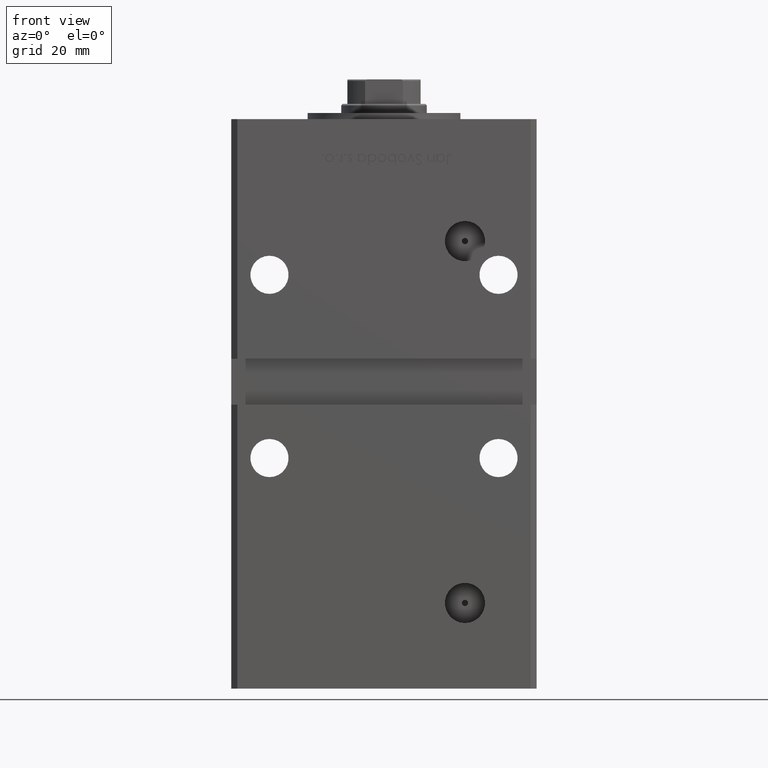
[diagram: clean part render]
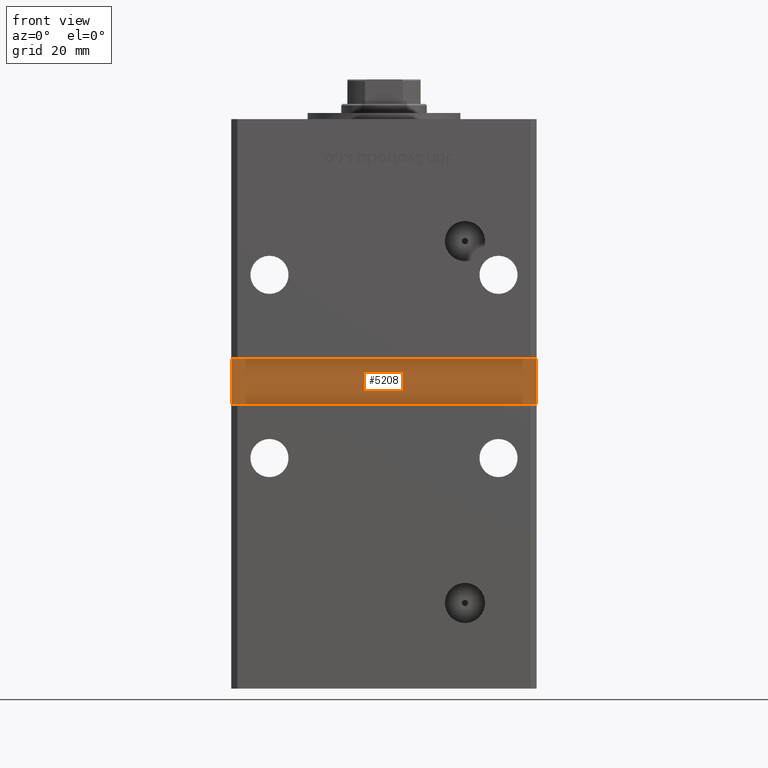
[diagram: same view with one face highlighted and labeled with its STEP entity id]
A machine part, front view. The second image highlights one B-rep face of the part: STEP entity #5208.
In plain terms, the highlighted planar face has unit normal (0, -1, 0).
Its self-contained STEP definition (entity closure, byte-faithful):
#64 = EDGE_LOOP ( 'NONE', ( #34169, #205, #2521, #29787 ) ) ;
#205 = ORIENTED_EDGE ( 'NONE', *, *, #41318, .T. ) ;
#914 = EDGE_CURVE ( 'NONE', #50993, #34106, #21449, .T. ) ;
#2521 = ORIENTED_EDGE ( 'NONE', *, *, #19489, .T. ) ;
#4487 = DIRECTION ( 'NONE',  ( 0.000000000000000000, -1.000000000000000000, 0.000000000000000000 ) ) ;
#5208 = ADVANCED_FACE ( 'NONE', ( #45626 ), #9049, .T. ) ;
#8787 = CARTESIAN_POINT ( 'NONE',  ( 0.000000000000000000, -38.50000000000000000, 0.000000000000000000 ) ) ;
#9049 = PLANE ( 'NONE',  #27549 ) ;
#11839 = VECTOR ( 'NONE', #12269, 1000.000000000000000 ) ;
#12262 = VERTEX_POINT ( 'NONE', #40412 ) ;
#12269 = DIRECTION ( 'NONE',  ( -1.000000000000000000, -0.000000000000000000, -0.000000000000000000 ) ) ;
#13649 = LINE ( 'NONE', #30587, #33989 ) ;
#14705 = DIRECTION ( 'NONE',  ( -0.000000000000000000, -0.000000000000000000, 1.000000000000000000 ) ) ;
#18218 = DIRECTION ( 'NONE',  ( 0.000000000000000000, 0.000000000000000000, -1.000000000000000000 ) ) ;
#19489 = EDGE_CURVE ( 'NONE', #31404, #50993, #13649, .T. ) ;
#21186 = DIRECTION ( 'NONE',  ( 1.000000000000000000, 0.000000000000000000, 0.000000000000000000 ) ) ;
#21411 = DIRECTION ( 'NONE',  ( 0.000000000000000000, -0.000000000000000000, -1.000000000000000000 ) ) ;
#21449 = LINE ( 'NONE', #22256, #49178 ) ;
#22256 = CARTESIAN_POINT ( 'NONE',  ( -49.99999999999998579, -38.50000000000000000, 74.00000000000000000 ) ) ;
#25734 = CARTESIAN_POINT ( 'NONE',  ( -49.99999999999998579, -38.50000000000000000, 74.00000000000000000 ) ) ;
#27549 = AXIS2_PLACEMENT_3D ( 'NONE', #8787, #4487, #21411 ) ;
#27588 = VECTOR ( 'NONE', #14705, 1000.000000000000000 ) ;
#29787 = ORIENTED_EDGE ( 'NONE', *, *, #914, .T. ) ;
#30587 = CARTESIAN_POINT ( 'NONE',  ( -49.99999999999998579, -38.50000000000000000, 89.00000000000000000 ) ) ;
#30966 = CARTESIAN_POINT ( 'NONE',  ( 49.99999999999998579, -38.49999999999999289, 74.00000000000000000 ) ) ;
#31404 = VERTEX_POINT ( 'NONE', #40852 ) ;
#33989 = VECTOR ( 'NONE', #18218, 1000.000000000000000 ) ;
#34106 = VERTEX_POINT ( 'NONE', #30966 ) ;
#34169 = ORIENTED_EDGE ( 'NONE', *, *, #51213, .T. ) ;
#37518 = LINE ( 'NONE', #45600, #11839 ) ;
#40412 = CARTESIAN_POINT ( 'NONE',  ( 49.99999999999998579, -38.50000000000000000, 89.00000000000000000 ) ) ;
#40852 = CARTESIAN_POINT ( 'NONE',  ( -49.99999999999998579, -38.50000000000000000, 89.00000000000000000 ) ) ;
#41318 = EDGE_CURVE ( 'NONE', #12262, #31404, #37518, .T. ) ;
#43735 = CARTESIAN_POINT ( 'NONE',  ( 49.99999999999998579, -38.50000000000000000, 89.00000000000000000 ) ) ;
#45600 = CARTESIAN_POINT ( 'NONE',  ( -49.99999999999998579, -38.50000000000000000, 89.00000000000000000 ) ) ;
#45626 = FACE_OUTER_BOUND ( 'NONE', #64, .T. ) ;
#49178 = VECTOR ( 'NONE', #21186, 1000.000000000000000 ) ;
#50993 = VERTEX_POINT ( 'NONE', #25734 ) ;
#51213 = EDGE_CURVE ( 'NONE', #34106, #12262, #52317, .T. ) ;
#52317 = LINE ( 'NONE', #43735, #27588 ) ;